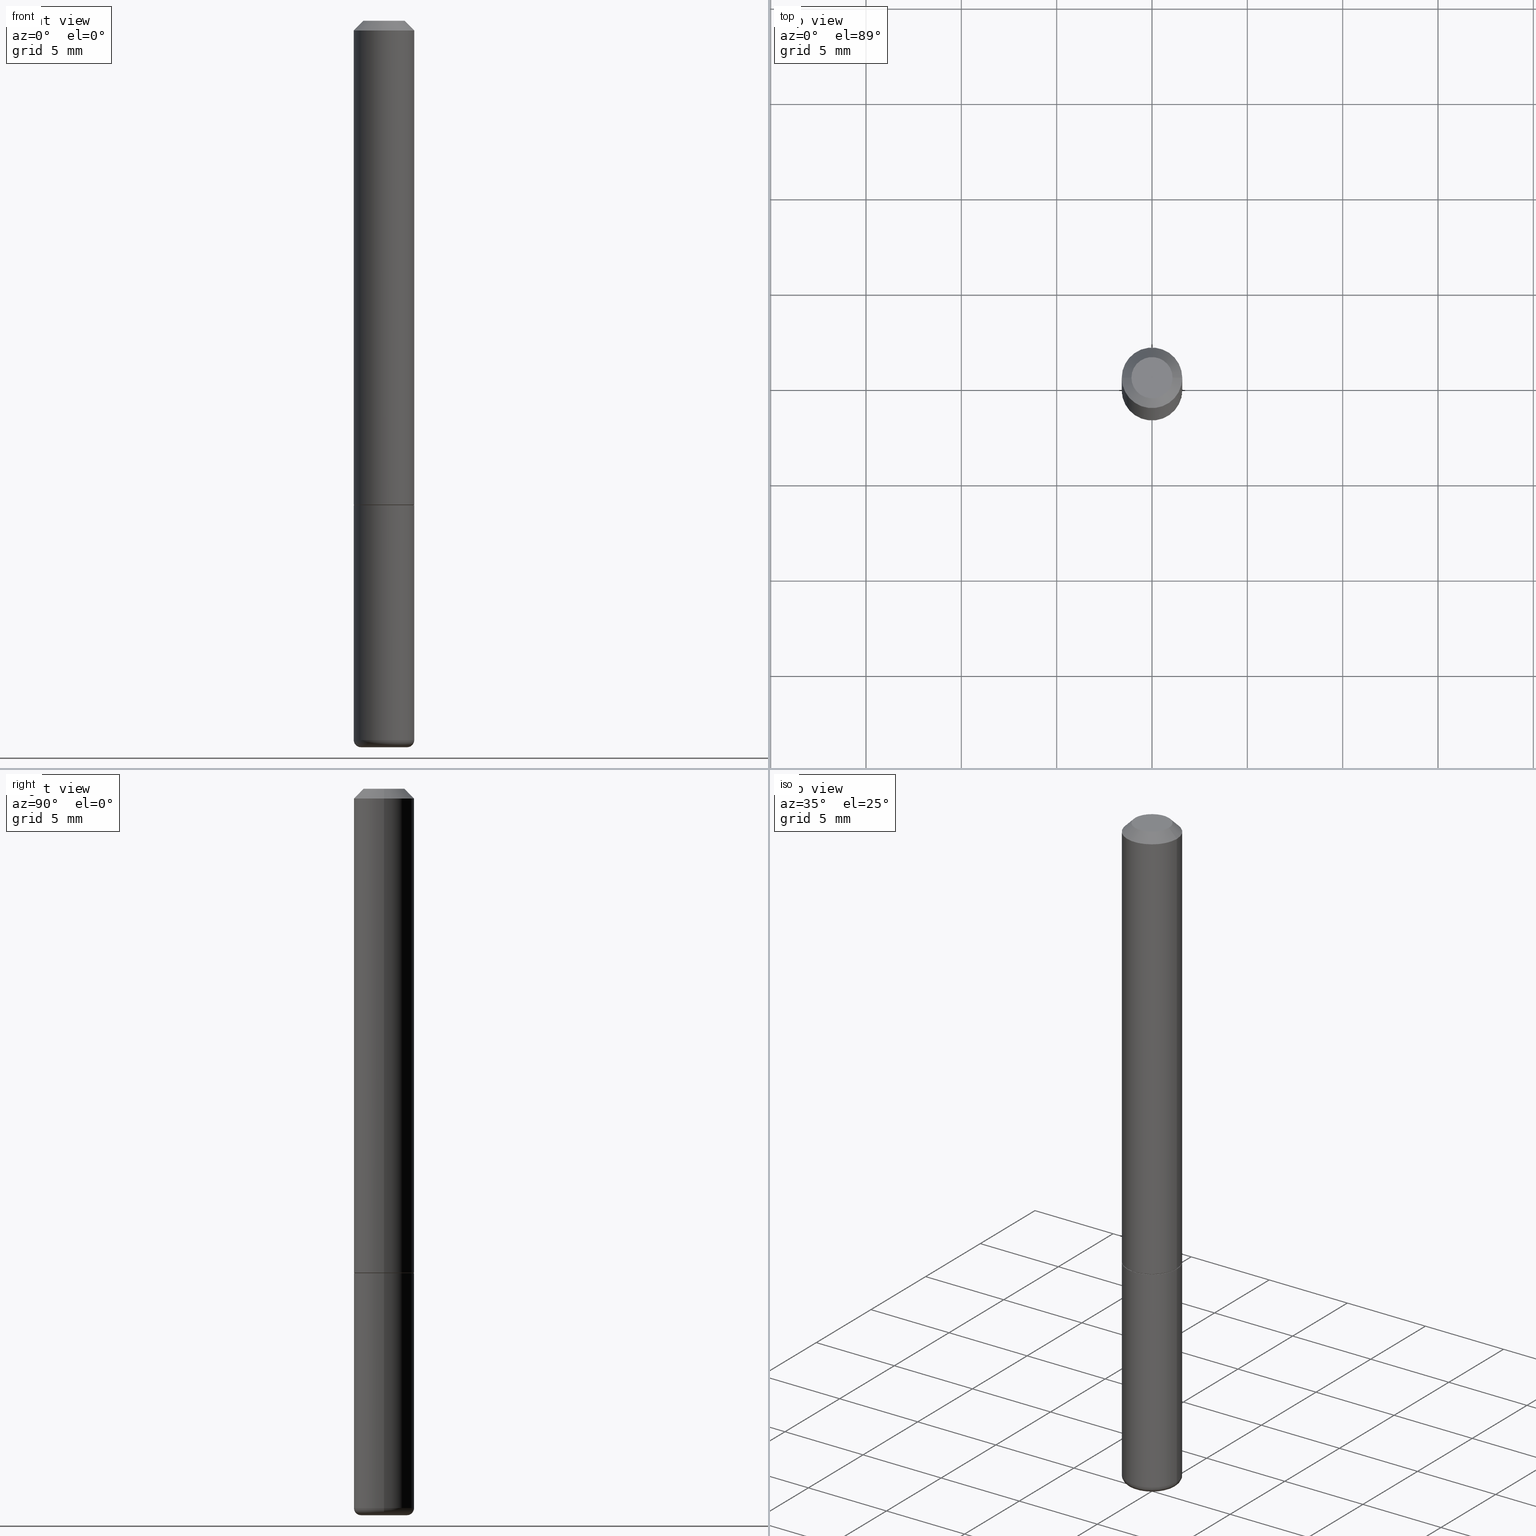
[diagram: canonical four-view strip — front | top / right | iso, engineering-drawing reading convention]
A machine part, canonical four-view strip (front | top / right | iso — engineering-drawing reading convention). The complete STEP part file that produces these views, byte-faithful:
ISO-10303-21;
HEADER;
FILE_DESCRIPTION (( 'STEP AP203' ),
    '1' );
FILE_NAME ('38157.STEP',
    '2023-03-22T20:25:53',
    ( '' ),
    ( '' ),
    'SwSTEP 2.0',
    'SolidWorks 2022',
    '' );
FILE_SCHEMA (( 'CONFIG_CONTROL_DESIGN' ));
ENDSEC;

DATA;
#1 = FACE_OUTER_BOUND ( 'NONE', #114, .T. ) ;
#2 = AXIS2_PLACEMENT_3D ( 'NONE', #435, #329, #359 ) ;
#3 = ORIENTED_EDGE ( 'NONE', *, *, #268, .F. ) ;
#4 = CARTESIAN_POINT ( 'NONE',  ( 0.000000000000000000, 0.000000000000000000, 0.000000000000000000 ) ) ;
#5 = ORIENTED_EDGE ( 'NONE', *, *, #74, .F. ) ;
#6 = CARTESIAN_POINT ( 'NONE',  ( -0.06249999999999988204, 4.440892098500617780E-16, -3.074334431409310158E-30 ) ) ;
#7 = EDGE_LOOP ( 'NONE', ( #322, #236, #81, #41 ) ) ;
#8 = DATE_AND_TIME ( #215, #214 ) ;
#9 = ADVANCED_FACE ( 'NONE', ( #179 ), #182, .T. ) ;
#10 = CIRCLE ( 'NONE', #152, 0.06249999999999981265 ) ;
#11 = COORDINATED_UNIVERSAL_TIME_OFFSET ( 5, 0, .BEHIND. ) ;
#12 = EDGE_CURVE ( 'NONE', #313, #301, #80, .T. ) ;
#13 = DIRECTION ( 'NONE',  ( 1.000000000000000000, -6.982962677686268288E-15, 0.000000000000000000 ) ) ;
#14 = LENGTH_MEASURE_WITH_UNIT ( LENGTH_MEASURE( 0.02539999999999999897 ), #29 );
#15 = DIRECTION ( 'NONE',  ( 1.000000000000000000, -6.982962677686259611E-15, 0.000000000000000000 ) ) ;
#16 = VECTOR ( 'NONE', #86, 39.37007874015748143 ) ;
#17 = CONICAL_SURFACE ( 'NONE', #109, 751.2258538476739886, 1.518436449235074148 ) ;
#18 = DATE_TIME_ROLE ( 'creation_date' ) ;
#19 = VECTOR ( 'NONE', #287, 39.37007874015748143 ) ;
#20 = DIRECTION ( 'NONE',  ( -2.445468806185136597E-29, 3.491481338843145583E-15, 1.000000000000000000 ) ) ;
#21 = DIRECTION ( 'NONE',  ( -2.445468806185136597E-29, 3.491481338843145583E-15, 1.000000000000000000 ) ) ;
#22 = CC_DESIGN_PERSON_AND_ORGANIZATION_ASSIGNMENT ( #320, #77, ( #188 ) ) ;
#23 = EDGE_CURVE ( 'NONE', #211, #413, #202, .T. ) ;
#24 = CC_DESIGN_SECURITY_CLASSIFICATION ( #188, ( #432 ) ) ;
#25 = CARTESIAN_POINT ( 'NONE',  ( -0.04750000000000004219, -4.847413763003477187E-15, -1.485020556978682960 ) ) ;
#26 = CARTESIAN_POINT ( 'NONE',  ( -0.06150000000000001299, -3.054497556350684763E-15, -1.000000000000000222 ) ) ;
#27 = CC_DESIGN_PERSON_AND_ORGANIZATION_ASSIGNMENT ( #47, #113, ( #432 ) ) ;
#28 = CARTESIAN_POINT ( 'NONE',  ( 0.06249999999999988204, -4.364351673553908312E-16, 3.047610484872453915E-30 ) ) ;
#29 =( LENGTH_UNIT ( ) NAMED_UNIT ( * ) SI_UNIT ( $, .METRE. ) );
#30 = VECTOR ( 'NONE', #295, 39.37007874015748143 ) ;
#31 = ORGANIZATION ( 'UNSPECIFIED', 'UNSPECIFIED', '' ) ;
#32 = FACE_OUTER_BOUND ( 'NONE', #136, .T. ) ;
#33 = ORIENTED_EDGE ( 'NONE', *, *, #124, .T. ) ;
#34 = CARTESIAN_POINT ( 'NONE',  ( 2.445468806185137438E-29, -3.491481338843146371E-15, -1.000000000000000222 ) ) ;
#35 = ORIENTED_EDGE ( 'NONE', *, *, #327, .F. ) ;
#36 = DIRECTION ( 'NONE',  ( 1.000000000000000000, -6.982962677686268288E-15, 0.000000000000000000 ) ) ;
#37 = CIRCLE ( 'NONE', #422, 0.06250000000000001388 ) ;
#38 = ORIENTED_EDGE ( 'NONE', *, *, #386, .T. ) ;
#39 = CARTESIAN_POINT ( 'NONE',  ( 2.445468806185137438E-29, -3.491481338843146371E-15, -1.000000000000000222 ) ) ;
#40 = DESIGN_CONTEXT ( 'detailed design', #46, 'design' ) ;
#41 = ORIENTED_EDGE ( 'NONE', *, *, #243, .F. ) ;
#42 = APPROVAL ( #241, 'UNSPECIFIED' ) ;
#43 = CALENDAR_DATE ( 2023, 22, 3 ) ;
#44 = EDGE_CURVE ( 'NONE', #378, #266, #64, .T. ) ;
#45 = LINE ( 'NONE', #180, #19 ) ;
#46 = APPLICATION_CONTEXT ( 'configuration controlled 3d designs of mechanical parts and assemblies' ) ;
#47 = PERSON_AND_ORGANIZATION ( #280, #31 ) ;
#48 = AXIS2_PLACEMENT_3D ( 'NONE', #369, #71, #104 ) ;
#49 = PERSON_AND_ORGANIZATION_ROLE ( 'design_supplier' ) ;
#50 = DIRECTION ( 'NONE',  ( 1.000000000000000000, -6.982962677686267499E-15, 4.870577812114089772E-29 ) ) ;
#51 = EDGE_LOOP ( 'NONE', ( #394, #342 ) ) ;
#52 = PERSON_AND_ORGANIZATION ( #280, #31 ) ;
#53 = DIRECTION ( 'NONE',  ( -2.445468806185136597E-29, 3.491481338843145583E-15, 1.000000000000000000 ) ) ;
#54 = TOROIDAL_SURFACE ( 'NONE', #401, 0.04750000000000004219, 0.01499999999999971148 ) ;
#55 = DIRECTION ( 'NONE',  ( 1.000000000000000000, -6.982962677686265922E-15, 4.876176775795935793E-29 ) ) ;
#56 = EDGE_CURVE ( 'NONE', #348, #170, #290, .T. ) ;
#57 = LINE ( 'NONE', #6, #162 ) ;
#58 = PRODUCT_DEFINITION ( 'UNKNOWN', '', #432, #40 ) ;
#59 = DIRECTION ( 'NONE',  ( -1.000000000000000000, 7.105427357600997914E-15, 0.000000000000000000 ) ) ;
#60 = AXIS2_PLACEMENT_3D ( 'NONE', #99, #311, #132 ) ;
#61 = DIRECTION ( 'NONE',  ( 1.000000000000000000, -6.982962677686259611E-15, 4.883557194083110659E-29 ) ) ;
#62 = CARTESIAN_POINT ( 'NONE',  ( 0.06249999999999988204, -4.364351673553908312E-16, 3.047610484872453915E-30 ) ) ;
#63 = DIRECTION ( 'NONE',  ( 1.000000000000000000, -6.982962677686266711E-15, 4.876176775795935232E-29 ) ) ;
#64 = CIRCLE ( 'NONE', #437, 0.06249999999999995143 ) ;
#65 = CIRCLE ( 'NONE', #325, 0.06150000000000001299 ) ;
#66 = ORIENTED_EDGE ( 'NONE', *, *, #340, .F. ) ;
#67 = ADVANCED_BREP_SHAPE_REPRESENTATION ( '38157', ( #131, #428, #299 ), #307 ) ;
#68 = CYLINDRICAL_SURFACE ( 'NONE', #221, 0.06249999999999988204 ) ;
#69 = ORIENTED_EDGE ( 'NONE', *, *, #210, .T. ) ;
#70 = CARTESIAN_POINT ( 'NONE',  ( 0.000000000000000000, 0.000000000000000000, 0.000000000000000000 ) ) ;
#71 = DIRECTION ( 'NONE',  ( 2.438088387897960049E-29, -3.491481338843145188E-15, -1.000000000000000000 ) ) ;
#72 = AXIS2_PLACEMENT_3D ( 'NONE', #262, #260, #61 ) ;
#73 = ORIENTED_EDGE ( 'NONE', *, *, #56, .T. ) ;
#74 = EDGE_CURVE ( 'NONE', #166, #253, #37, .T. ) ;
#75 = APPROVAL_ROLE ( '' ) ;
#76 = ORIENTED_EDGE ( 'NONE', *, *, #149, .F. ) ;
#77 = PERSON_AND_ORGANIZATION_ROLE ( 'classification_officer' ) ;
#78 = ORIENTED_EDGE ( 'NONE', *, *, #150, .T. ) ;
#79 = PERSON_AND_ORGANIZATION ( #280, #31 ) ;
#80 = LINE ( 'NONE', #387, #204 ) ;
#81 = ORIENTED_EDGE ( 'NONE', *, *, #23, .F. ) ;
#82 = COORDINATED_UNIVERSAL_TIME_OFFSET ( 5, 0, .BEHIND. ) ;
#83 = DIRECTION ( 'NONE',  ( -2.445468806185136597E-29, 3.491481338843145583E-15, 1.000000000000000000 ) ) ;
#84 = VERTEX_POINT ( 'NONE', #427 ) ;
#85 = APPROVAL_STATUS ( 'not_yet_approved' ) ;
#86 = DIRECTION ( 'NONE',  ( -2.445468806185136877E-29, 3.491481338843145188E-15, 1.000000000000000000 ) ) ;
#87 = EDGE_CURVE ( 'NONE', #313, #350, #240, .T. ) ;
#88 = AXIS2_PLACEMENT_3D ( 'NONE', #197, #275, #343 ) ;
#89 = FACE_OUTER_BOUND ( 'NONE', #7, .T. ) ;
#90 = LINE ( 'NONE', #62, #30 ) ;
#91 = DIRECTION ( 'NONE',  ( -1.000000000000000000, 6.982962677686266711E-15, 0.000000000000000000 ) ) ;
#92 = AXIS2_PLACEMENT_3D ( 'NONE', #355, #53, #119 ) ;
#93 = AXIS2_PLACEMENT_3D ( 'NONE', #189, #333, #121 ) ;
#94 = CARTESIAN_POINT ( 'NONE',  ( 2.445468806185137438E-29, -3.491481338843146371E-15, -1.000000000000000222 ) ) ;
#95 = CYLINDRICAL_SURFACE ( 'NONE', #93, 0.06249999999999988204 ) ;
#96 = FACE_OUTER_BOUND ( 'NONE', #356, .T. ) ;
#97 = EDGE_LOOP ( 'NONE', ( #276, #73, #106 ) ) ;
#98 = CC_DESIGN_PERSON_AND_ORGANIZATION_ASSIGNMENT ( #52, #389, ( #58 ) ) ;
#99 = CARTESIAN_POINT ( 'NONE',  ( 4.364351673554161734E-16, 0.06249999999999652361, -1.000000000000000444 ) ) ;
#100 = AXIS2_PLACEMENT_3D ( 'NONE', #203, #416, #308 ) ;
#101 = ORIENTED_EDGE ( 'NONE', *, *, #424, .F. ) ;
#102 = DIRECTION ( 'NONE',  ( -2.445468806185136597E-29, 3.491481338843145583E-15, 1.000000000000000000 ) ) ;
#103 = ORIENTED_EDGE ( 'NONE', *, *, #283, .F. ) ;
#104 = DIRECTION ( 'NONE',  ( -1.000000000000000000, 6.982962677686265922E-15, -4.876176775795935793E-29 ) ) ;
#105 = EDGE_CURVE ( 'NONE', #350, #248, #45, .T. ) ;
#106 = ORIENTED_EDGE ( 'NONE', *, *, #124, .F. ) ;
#107 = DATE_AND_TIME ( #323, #177 ) ;
#108 = AXIS2_PLACEMENT_3D ( 'NONE', #219, #112, #224 ) ;
#109 = AXIS2_PLACEMENT_3D ( 'NONE', #142, #195, #339 ) ;
#110 = ORIENTED_EDGE ( 'NONE', *, *, #12, .T. ) ;
#111 = DATE_TIME_ROLE ( 'classification_date' ) ;
#112 = DIRECTION ( 'NONE',  ( -2.445468806185136597E-29, 3.491481338843145583E-15, 1.000000000000000000 ) ) ;
#113 = PERSON_AND_ORGANIZATION_ROLE ( 'creator' ) ;
#114 = EDGE_LOOP ( 'NONE', ( #168, #138, #66 ) ) ;
#115 = DIRECTION ( 'NONE',  ( -2.445468806185136597E-29, 3.491481338843145583E-15, 1.000000000000000000 ) ) ;
#116 = CIRCLE ( 'NONE', #100, 0.06249999999999981265 ) ;
#117 =( NAMED_UNIT ( * ) SI_UNIT ( $, .STERADIAN. ) SOLID_ANGLE_UNIT ( ) );
#118 = FACE_OUTER_BOUND ( 'NONE', #303, .T. ) ;
#119 = DIRECTION ( 'NONE',  ( 1.000000000000000000, -6.982962677686258033E-15, 0.000000000000000000 ) ) ;
#120 = ADVANCED_FACE ( 'NONE', ( #118 ), #54, .T. ) ;
#121 = DIRECTION ( 'NONE',  ( 1.000000000000000000, -6.982962677686266711E-15, 4.876176775795935232E-29 ) ) ;
#122 = CONICAL_SURFACE ( 'NONE', #309, 0.06249999999999981265, 0.7853981633974463916 ) ;
#123 = APPROVAL_PERSON_ORGANIZATION ( #148, #392, #284 ) ;
#124 = EDGE_CURVE ( 'NONE', #84, #170, #395, .T. ) ;
#125 = CARTESIAN_POINT ( 'NONE',  ( 0.06249999999999981265, -4.986107516375823445E-16, -0.01999999999999999001 ) ) ;
#126 = CARTESIAN_POINT ( 'NONE',  ( 9.994051560177719446E-28, -1.426885692982134992E-13, -40.86763051281019443 ) ) ;
#127 = CARTESIAN_POINT ( 'NONE',  ( -2.032607766320327213E-17, -5.228674068168398963E-15, -1.497551772652707003 ) ) ;
#128 = LOCAL_TIME ( 16, 25, 53.00000000000000000, #206 ) ;
#129 = FACE_OUTER_BOUND ( 'NONE', #353, .T. ) ;
#130 = AXIS2_PLACEMENT_3D ( 'NONE', #126, #404, #91 ) ;
#131 = MANIFOLD_SOLID_BREP ( 'Body-Move/Copy2[1]', #379 ) ;
#132 = DIRECTION ( 'NONE',  ( -1.000000000000000000, 6.982962677686265922E-15, -4.876176775795935793E-29 ) ) ;
#133 = EDGE_CURVE ( 'NONE', #413, #253, #145, .T. ) ;
#134 = ORIENTED_EDGE ( 'NONE', *, *, #268, .T. ) ;
#135 = CARTESIAN_POINT ( 'NONE',  ( 0.06249999999999995143, -3.924425024859695428E-15, -0.9990000000000004432 ) ) ;
#136 = EDGE_LOOP ( 'NONE', ( #310, #140, #110, #319 ) ) ;
#137 = DIRECTION ( 'NONE',  ( -2.445468806185136877E-29, 3.491481338843145188E-15, 1.000000000000000000 ) ) ;
#138 = ORIENTED_EDGE ( 'NONE', *, *, #230, .T. ) ;
#139 = DIRECTION ( 'NONE',  ( 1.000000000000000000, -6.982962677686266711E-15, 0.000000000000000000 ) ) ;
#140 = ORIENTED_EDGE ( 'NONE', *, *, #87, .F. ) ;
#141 = DIMENSIONAL_EXPONENTS ( 1.000000000000000000, 0.000000000000000000, 0.000000000000000000, 0.000000000000000000, 0.000000000000000000, 0.000000000000000000, 0.000000000000000000 ) ;
#142 = CARTESIAN_POINT ( 'NONE',  ( 9.994051560177719446E-28, -1.426885692982134992E-13, -40.86763051281019443 ) ) ;
#143 = ORIENTED_EDGE ( 'NONE', *, *, #368, .T. ) ;
#144 = MECHANICAL_CONTEXT ( 'NONE', #328, 'mechanical' ) ;
#145 = LINE ( 'NONE', #393, #16 ) ;
#146 = CIRCLE ( 'NONE', #193, 0.01499999999999971148 ) ;
#147 = CIRCLE ( 'NONE', #257, 0.04671496065635604572 ) ;
#148 = PERSON_AND_ORGANIZATION ( #280, #31 ) ;
#149 = EDGE_CURVE ( 'NONE', #413, #211, #263, .T. ) ;
#150 = EDGE_CURVE ( 'NONE', #350, #313, #316, .T. ) ;
#151 = CALENDAR_DATE ( 2023, 22, 3 ) ;
#152 = AXIS2_PLACEMENT_3D ( 'NONE', #239, #306, #139 ) ;
#153 = CALENDAR_DATE ( 2023, 22, 3 ) ;
#154 = CARTESIAN_POINT ( 'NONE',  ( 2.445468806185137438E-29, -3.491481338843146371E-15, -1.000000000000000222 ) ) ;
#155 = CC_DESIGN_DATE_AND_TIME_ASSIGNMENT ( #107, #18, ( #58 ) ) ;
#156 = DIRECTION ( 'NONE',  ( -1.000000000000000000, 6.982962677686266711E-15, 0.000000000000000000 ) ) ;
#157 = AXIS2_PLACEMENT_3D ( 'NONE', #4, #335, #63 ) ;
#158 = DIRECTION ( 'NONE',  ( 1.000000000000000000, -6.982962677686273021E-15, 0.000000000000000000 ) ) ;
#159 = CARTESIAN_POINT ( 'NONE',  ( 0.06150000000000001299, -3.920933543520852421E-15, -1.000000000000000222 ) ) ;
#160 = DIRECTION ( 'NONE',  ( -0.7071067811865957564, 7.493145998870527710E-15, 0.7071067811864992780 ) ) ;
#161 = CLOSED_SHELL ( 'NONE', ( #293, #439, #244, #341, #372, #9, #292, #406 ) ) ;
#162 = VECTOR ( 'NONE', #137, 39.37007874015748143 ) ;
#163 = DIRECTION ( 'NONE',  ( -1.000000000000000000, 6.982962677686266711E-15, 0.000000000000000000 ) ) ;
#164 = ADVANCED_FACE ( 'NONE', ( #229 ), #184, .F. ) ;
#165 = AXIS2_PLACEMENT_3D ( 'NONE', #213, #83, #15 ) ;
#166 = VERTEX_POINT ( 'NONE', #362 ) ;
#167 = DIRECTION ( 'NONE',  ( -2.445468806185136597E-29, 3.491481338843145583E-15, 1.000000000000000000 ) ) ;
#168 = ORIENTED_EDGE ( 'NONE', *, *, #56, .F. ) ;
#169 = PLANE ( 'NONE',  #48 ) ;
#170 = VERTEX_POINT ( 'NONE', #396 ) ;
#171 = CARTESIAN_POINT ( 'NONE',  ( -0.06249999999999975020, -3.894112240816274685E-15, -1.485020556978682515 ) ) ;
#172 = ORIENTED_EDGE ( 'NONE', *, *, #405, .T. ) ;
#173 = DIRECTION ( 'NONE',  ( 1.000000000000000000, -6.982962677686266711E-15, 4.876176775795935232E-29 ) ) ;
#174 = ORIENTED_EDGE ( 'NONE', *, *, #312, .F. ) ;
#175 = APPLICATION_PROTOCOL_DEFINITION ( 'international standard', 'config_control_design', 1994, #46 ) ;
#176 = DIRECTION ( 'NONE',  ( -0.7071067811865461294, 2.468850131082242072E-15, -0.7071067811865489050 ) ) ;
#177 = LOCAL_TIME ( 16, 25, 53.00000000000000000, #314 ) ;
#178 = CC_DESIGN_PERSON_AND_ORGANIZATION_ASSIGNMENT ( #278, #209, ( #354 ) ) ;
#179 = FACE_OUTER_BOUND ( 'NONE', #238, .T. ) ;
#180 = CARTESIAN_POINT ( 'NONE',  ( 0.06249999999999981265, -4.986107516375823445E-16, -0.01999999999999999001 ) ) ;
#181 = ORIENTED_EDGE ( 'NONE', *, *, #44, .F. ) ;
#182 = CONICAL_SURFACE ( 'NONE', #403, 0.06150000000000001299, 0.7853981633975165577 ) ;
#183 = VECTOR ( 'NONE', #400, 39.37007874015748143 ) ;
#184 = CONICAL_SURFACE ( 'NONE', #130, 751.2258538476739886, 1.518436449235074148 ) ;
#185 = FACE_OUTER_BOUND ( 'NONE', #51, .T. ) ;
#186 = LINE ( 'NONE', #26, #338 ) ;
#187 = CARTESIAN_POINT ( 'NONE',  ( 0.04750000000000004219, -5.516612289679623769E-15, -1.485020556978682960 ) ) ;
#188 = SECURITY_CLASSIFICATION ( '', '', #421 ) ;
#189 = CARTESIAN_POINT ( 'NONE',  ( 0.000000000000000000, 0.000000000000000000, 0.000000000000000000 ) ) ;
#190 = CARTESIAN_POINT ( 'NONE',  ( 0.06249999999999975020, -5.621356729844913983E-15, -1.485020556978682515 ) ) ;
#191 = EDGE_CURVE ( 'NONE', #211, #166, #363, .T. ) ;
#192 = ORIENTED_EDGE ( 'NONE', *, *, #243, .T. ) ;
#193 = AXIS2_PLACEMENT_3D ( 'NONE', #187, #433, #158 ) ;
#194 = CONICAL_SURFACE ( 'NONE', #397, 0.06249999999999981265, 0.7853981633974463916 ) ;
#195 = DIRECTION ( 'NONE',  ( 2.445468806185136597E-29, -3.491481338843145583E-15, -1.000000000000000000 ) ) ;
#196 = ORIENTED_EDGE ( 'NONE', *, *, #44, .T. ) ;
#197 = CARTESIAN_POINT ( 'NONE',  ( 2.445468806185137438E-29, -3.491481338843146371E-15, -1.000000000000000222 ) ) ;
#198 = ORIENTED_EDGE ( 'NONE', *, *, #312, .T. ) ;
#199 = ORIENTED_EDGE ( 'NONE', *, *, #149, .T. ) ;
#200 = DIRECTION ( 'NONE',  ( -2.445468806185136597E-29, 3.491481338843145583E-15, 1.000000000000000000 ) ) ;
#201 = VERTEX_POINT ( 'NONE', #364 ) ;
#202 = CIRCLE ( 'NONE', #165, 0.06249999999999975020 ) ;
#203 = CARTESIAN_POINT ( 'NONE',  ( 4.890937612370270531E-31, -6.982962677686289144E-17, -0.01999999999999999001 ) ) ;
#204 = VECTOR ( 'NONE', #176, 39.37007874015748143 ) ;
#205 = ORIENTED_EDGE ( 'NONE', *, *, #210, .F. ) ;
#206 = COORDINATED_UNIVERSAL_TIME_OFFSET ( 5, 0, .BEHIND. ) ;
#207 = ORIENTED_EDGE ( 'NONE', *, *, #133, .F. ) ;
#208 = EDGE_CURVE ( 'NONE', #84, #413, #440, .T. ) ;
#209 = PERSON_AND_ORGANIZATION_ROLE ( 'design_owner' ) ;
#210 = EDGE_CURVE ( 'NONE', #378, #248, #90, .T. ) ;
#211 = VERTEX_POINT ( 'NONE', #190 ) ;
#212 = APPLICATION_PROTOCOL_DEFINITION ( 'international standard', 'config_control_design', 1994, #328 ) ;
#213 = CARTESIAN_POINT ( 'NONE',  ( 3.631571448635045368E-29, -5.184921562489524681E-15, -1.485020556978682515 ) ) ;
#214 = LOCAL_TIME ( 16, 25, 53.00000000000000000, #82 ) ;
#215 = CALENDAR_DATE ( 2023, 22, 3 ) ;
#216 = ORIENTED_EDGE ( 'NONE', *, *, #191, .F. ) ;
#217 = PERSON_AND_ORGANIZATION ( #280, #31 ) ;
#218 = DIRECTION ( 'NONE',  ( 1.000000000000000000, -6.982962677686259611E-15, 4.883557194083110659E-29 ) ) ;
#219 = CARTESIAN_POINT ( 'NONE',  ( 3.631571448635045368E-29, -5.184921562489524681E-15, -1.485020556978682515 ) ) ;
#220 = AXIS2_PLACEMENT_3D ( 'NONE', #25, #296, #59 ) ;
#221 = AXIS2_PLACEMENT_3D ( 'NONE', #442, #273, #173 ) ;
#222 = CARTESIAN_POINT ( 'NONE',  ( -0.06249999999999981265, 3.666055405785274344E-16, -0.01999999999999999001 ) ) ;
#223 = SHAPE_DEFINITION_REPRESENTATION ( #429, #67 ) ;
#224 = DIRECTION ( 'NONE',  ( 1.000000000000000000, -6.982962677686259611E-15, 0.000000000000000000 ) ) ;
#225 = CARTESIAN_POINT ( 'NONE',  ( -0.06250000000000001388, -3.894112240816274685E-15, -1.000000000000000222 ) ) ;
#226 = AXIS2_PLACEMENT_3D ( 'NONE', #324, #321, #50 ) ;
#227 = APPROVAL_PERSON_ORGANIZATION ( #250, #259, #425 ) ;
#228 = EDGE_LOOP ( 'NONE', ( #196, #198, #101, #205 ) ) ;
#229 = FACE_OUTER_BOUND ( 'NONE', #97, .T. ) ;
#230 = EDGE_CURVE ( 'NONE', #348, #84, #399, .T. ) ;
#231 = FACE_OUTER_BOUND ( 'NONE', #228, .T. ) ;
#232 = FACE_OUTER_BOUND ( 'NONE', #346, .T. ) ;
#233 = ORIENTED_EDGE ( 'NONE', *, *, #105, .T. ) ;
#234 = AXIS2_PLACEMENT_3D ( 'NONE', #39, #102, #375 ) ;
#235 = DIRECTION ( 'NONE',  ( 1.000000000000000000, -6.982962677686258033E-15, 0.000000000000000000 ) ) ;
#236 = ORIENTED_EDGE ( 'NONE', *, *, #208, .T. ) ;
#237 = CARTESIAN_POINT ( 'NONE',  ( -0.04249999999999995448, 3.316907271900966728E-16, -5.549066237130754373E-17 ) ) ;
#238 = EDGE_LOOP ( 'NONE', ( #3, #143, #272, #408 ) ) ;
#239 = CARTESIAN_POINT ( 'NONE',  ( 4.890937612370270531E-31, -6.982962677686289144E-17, -0.01999999999999999001 ) ) ;
#240 = CIRCLE ( 'NONE', #226, 0.04249999999999995448 ) ;
#241 = APPROVAL_STATUS ( 'not_yet_approved' ) ;
#242 = ORIENTED_EDGE ( 'NONE', *, *, #424, .T. ) ;
#243 = EDGE_CURVE ( 'NONE', #170, #211, #146, .T. ) ;
#244 = ADVANCED_FACE ( 'NONE', ( #332 ), #122, .T. ) ;
#245 = DATE_AND_TIME ( #43, #128 ) ;
#246 = ORIENTED_EDGE ( 'NONE', *, *, #23, .T. ) ;
#247 = DIRECTION ( 'NONE',  ( 1.000000000000000000, 0.000000000000000000, 0.000000000000000000 ) ) ;
#248 = VERTEX_POINT ( 'NONE', #125 ) ;
#249 = ADVANCED_FACE ( 'NONE', ( #89 ), #256, .T. ) ;
#250 = PERSON_AND_ORGANIZATION ( #280, #31 ) ;
#251 = CARTESIAN_POINT ( 'NONE',  ( 2.445468806185137438E-29, -3.491481338843146371E-15, -1.000000000000000222 ) ) ;
#252 = CONICAL_SURFACE ( 'NONE', #270, 0.06150000000000001299, 0.7853981633975165577 ) ;
#253 = VERTEX_POINT ( 'NONE', #225 ) ;
#254 = CARTESIAN_POINT ( 'NONE',  ( 3.631571448635045929E-29, -5.184921562489525469E-15, -1.485020556978682960 ) ) ;
#255 = DIRECTION ( 'NONE',  ( 1.000000000000000000, -6.982962677686268288E-15, 0.000000000000000000 ) ) ;
#256 = TOROIDAL_SURFACE ( 'NONE', #72, 0.04750000000000004219, 0.01499999999999971148 ) ;
#257 = AXIS2_PLACEMENT_3D ( 'NONE', #412, #271, #235 ) ;
#258 = ADVANCED_FACE ( 'NONE', ( #291 ), #95, .T. ) ;
#259 = APPROVAL ( #281, 'UNSPECIFIED' ) ;
#260 = DIRECTION ( 'NONE',  ( -2.445468806185136597E-29, 3.491481338843145583E-15, 1.000000000000000000 ) ) ;
#261 = DIRECTION ( 'NONE',  ( 2.445468806185136597E-29, -3.491481338843145583E-15, -1.000000000000000000 ) ) ;
#262 = CARTESIAN_POINT ( 'NONE',  ( 3.631571448635045929E-29, -5.184921562489525469E-15, -1.485020556978682960 ) ) ;
#263 = CIRCLE ( 'NONE', #108, 0.06249999999999975020 ) ;
#264 = APPROVAL_PERSON_ORGANIZATION ( #217, #42, #75 ) ;
#265 = CARTESIAN_POINT ( 'NONE',  ( 2.445468806185137438E-29, -3.491481338843146371E-15, -1.000000000000000222 ) ) ;
#266 = VERTEX_POINT ( 'NONE', #334 ) ;
#267 = CARTESIAN_POINT ( 'NONE',  ( 3.676409769840065992E-29, -5.208347990505159588E-15, -1.497551772652707003 ) ) ;
#268 = EDGE_CURVE ( 'NONE', #201, #266, #186, .T. ) ;
#269 = ORIENTED_EDGE ( 'NONE', *, *, #133, .T. ) ;
#270 = AXIS2_PLACEMENT_3D ( 'NONE', #265, #20, #255 ) ;
#271 = DIRECTION ( 'NONE',  ( -2.445468806185136597E-29, 3.491481338843145583E-15, 1.000000000000000000 ) ) ;
#272 = ORIENTED_EDGE ( 'NONE', *, *, #283, .T. ) ;
#273 = DIRECTION ( 'NONE',  ( -2.445468806185136597E-29, 3.491481338843145583E-15, 1.000000000000000000 ) ) ;
#274 = ORIENTED_EDGE ( 'NONE', *, *, #87, .T. ) ;
#275 = DIRECTION ( 'NONE',  ( -2.445468806185136597E-29, 3.491481338843145583E-15, 1.000000000000000000 ) ) ;
#276 = ORIENTED_EDGE ( 'NONE', *, *, #230, .F. ) ;
#277 = EDGE_CURVE ( 'NONE', #266, #378, #279, .T. ) ;
#278 = PERSON_AND_ORGANIZATION ( #280, #31 ) ;
#279 = CIRCLE ( 'NONE', #2, 0.06249999999999995143 ) ;
#280 = PERSON ( 'UNSPECIFIED', 'UNSPECIFIED', 'UNSPECIFIED', ('UNSPECIFIED'), ('UNSPECIFIED'), ('UNSPECIFIED') ) ;
#281 = APPROVAL_STATUS ( 'not_yet_approved' ) ;
#282 = CARTESIAN_POINT ( 'NONE',  ( 2.443023337378952675E-29, -3.487989857504303759E-15, -0.9990000000000004432 ) ) ;
#283 = EDGE_CURVE ( 'NONE', #376, #378, #298, .T. ) ;
#284 = APPROVAL_ROLE ( '' ) ;
#285 = DIRECTION ( 'NONE',  ( 1.000000000000000000, -6.982962677686269077E-15, 0.000000000000000000 ) ) ;
#286 = COORDINATED_UNIVERSAL_TIME_OFFSET ( 5, 0, .BEHIND. ) ;
#287 = DIRECTION ( 'NONE',  ( 0.7071067811865461294, -7.319954787623251312E-15, -0.7071067811865489050 ) ) ;
#288 = LOCAL_TIME ( 16, 25, 53.00000000000000000, #286 ) ;
#289 = APPROVAL_DATE_TIME ( #426, #392 ) ;
#290 = LINE ( 'NONE', #315, #361 ) ;
#291 = FACE_OUTER_BOUND ( 'NONE', #441, .T. ) ;
#292 = ADVANCED_FACE ( 'NONE', ( #185 ), #431, .F. ) ;
#293 = ADVANCED_FACE ( 'NONE', ( #129 ), #252, .T. ) ;
#294 = DIRECTION ( 'NONE',  ( 1.000000000000000000, -6.982962677686267499E-15, 4.870577812114089772E-29 ) ) ;
#295 = DIRECTION ( 'NONE',  ( -2.445468806185136877E-29, 3.491481338843145188E-15, 1.000000000000000000 ) ) ;
#296 = DIRECTION ( 'NONE',  ( 7.105427357601001859E-15, 1.000000000000000000, -3.491481338843145583E-15 ) ) ;
#297 = ORIENTED_EDGE ( 'NONE', *, *, #277, .T. ) ;
#298 = LINE ( 'NONE', #159, #183 ) ;
#299 = AXIS2_PLACEMENT_3D ( 'NONE', #385, #349, #247 ) ;
#300 = FACE_OUTER_BOUND ( 'NONE', #370, .T. ) ;
#301 = VERTEX_POINT ( 'NONE', #222 ) ;
#302 = CARTESIAN_POINT ( 'NONE',  ( 0.06150000000000001299, -3.920933543520852421E-15, -1.000000000000000222 ) ) ;
#303 = EDGE_LOOP ( 'NONE', ( #430, #33, #192, #76 ) ) ;
#304 = ORIENTED_EDGE ( 'NONE', *, *, #12, .F. ) ;
#305 = PRODUCT_RELATED_PRODUCT_CATEGORY ( 'detail', '', ( #354 ) ) ;
#306 = DIRECTION ( 'NONE',  ( -2.445468806185136597E-29, 3.491481338843145583E-15, 1.000000000000000000 ) ) ;
#307 =( GEOMETRIC_REPRESENTATION_CONTEXT ( 3 ) GLOBAL_UNCERTAINTY_ASSIGNED_CONTEXT ( ( #417 ) ) GLOBAL_UNIT_ASSIGNED_CONTEXT ( ( #381, #317, #117 ) ) REPRESENTATION_CONTEXT ( 'NONE', 'WORKASPACE' ) );
#308 = DIRECTION ( 'NONE',  ( 1.000000000000000000, -6.982962677686266711E-15, 0.000000000000000000 ) ) ;
#309 = AXIS2_PLACEMENT_3D ( 'NONE', #434, #261, #156 ) ;
#310 = ORIENTED_EDGE ( 'NONE', *, *, #105, .F. ) ;
#311 = DIRECTION ( 'NONE',  ( 2.438088387897960049E-29, -3.491481338843145188E-15, -1.000000000000000000 ) ) ;
#312 = EDGE_CURVE ( 'NONE', #266, #301, #57, .T. ) ;
#313 = VERTEX_POINT ( 'NONE', #237 ) ;
#314 = COORDINATED_UNIVERSAL_TIME_OFFSET ( 5, 0, .BEHIND. ) ;
#315 = CARTESIAN_POINT ( 'NONE',  ( 2.032607766327651910E-17, -5.228674068168398963E-15, -1.497551772652707003 ) ) ;
#316 = CIRCLE ( 'NONE', #419, 0.04249999999999995448 ) ;
#317 =( NAMED_UNIT ( * ) PLANE_ANGLE_UNIT ( ) SI_UNIT ( $, .RADIAN. ) );
#318 = DIRECTION ( 'NONE',  ( -2.445468806185136597E-29, 3.491481338843145583E-15, 1.000000000000000000 ) ) ;
#319 = ORIENTED_EDGE ( 'NONE', *, *, #327, .T. ) ;
#320 = PERSON_AND_ORGANIZATION ( #280, #31 ) ;
#321 = DIRECTION ( 'NONE',  ( -2.445468806185136597E-29, 3.491481338843145583E-15, 1.000000000000000000 ) ) ;
#322 = ORIENTED_EDGE ( 'NONE', *, *, #340, .T. ) ;
#323 = CALENDAR_DATE ( 2023, 22, 3 ) ;
#324 = CARTESIAN_POINT ( 'NONE',  ( 1.357006838635785746E-45, -1.937446121494581442E-31, -5.549066237130534971E-17 ) ) ;
#325 = AXIS2_PLACEMENT_3D ( 'NONE', #34, #167, #36 ) ;
#326 = VECTOR ( 'NONE', #365, 39.37007874015748143 ) ;
#327 = EDGE_CURVE ( 'NONE', #301, #248, #10, .T. ) ;
#328 = APPLICATION_CONTEXT ( 'configuration controlled 3d designs of mechanical parts and assemblies' ) ;
#329 = DIRECTION ( 'NONE',  ( -2.445468806185136597E-29, 3.491481338843145583E-15, 1.000000000000000000 ) ) ;
#330 = CC_DESIGN_PERSON_AND_ORGANIZATION_ASSIGNMENT ( #79, #49, ( #432 ) ) ;
#331 = CARTESIAN_POINT ( 'NONE',  ( 1.357006838635785746E-45, -1.937446121494581442E-31, -5.549066237130534971E-17 ) ) ;
#332 = FACE_OUTER_BOUND ( 'NONE', #374, .T. ) ;
#333 = DIRECTION ( 'NONE',  ( -2.445468806185136597E-29, 3.491481338843145583E-15, 1.000000000000000000 ) ) ;
#334 = CARTESIAN_POINT ( 'NONE',  ( -0.06249999999999995143, -1.334820532290519137E-15, -0.9990000000000004432 ) ) ;
#335 = DIRECTION ( 'NONE',  ( -2.445468806185136597E-29, 3.491481338843145583E-15, 1.000000000000000000 ) ) ;
#336 = VECTOR ( 'NONE', #398, 39.37007874015748143 ) ;
#337 = ORIENTED_EDGE ( 'NONE', *, *, #191, .T. ) ;
#338 = VECTOR ( 'NONE', #160, 39.37007874015748143 ) ;
#339 = DIRECTION ( 'NONE',  ( -1.000000000000000000, 6.982962677686266711E-15, 0.000000000000000000 ) ) ;
#340 = EDGE_CURVE ( 'NONE', #170, #84, #147, .T. ) ;
#341 = ADVANCED_FACE ( 'NONE', ( #32 ), #194, .T. ) ;
#342 = ORIENTED_EDGE ( 'NONE', *, *, #368, .F. ) ;
#343 = DIRECTION ( 'NONE',  ( 1.000000000000000000, -6.982962677686269077E-15, 0.000000000000000000 ) ) ;
#344 = DIRECTION ( 'NONE',  ( 1.000000000000000000, -6.982962677686266711E-15, 4.876176775795935232E-29 ) ) ;
#345 = CARTESIAN_POINT ( 'NONE',  ( 0.04249999999999995448, -3.950909582714361036E-16, -5.549066237130292766E-17 ) ) ;
#346 = EDGE_LOOP ( 'NONE', ( #207, #199, #337, #418 ) ) ;
#347 = DATE_AND_TIME ( #153, #288 ) ;
#348 = VERTEX_POINT ( 'NONE', #267 ) ;
#349 = DIRECTION ( 'NONE',  ( 0.000000000000000000, 0.000000000000000000, 1.000000000000000000 ) ) ;
#350 = VERTEX_POINT ( 'NONE', #345 ) ;
#351 = APPROVAL_DATE_TIME ( #8, #259 ) ;
#352 = DIRECTION ( 'NONE',  ( 0.9986295347545742773, -7.033825938271997912E-15, -0.05233595624293643084 ) ) ;
#353 = EDGE_LOOP ( 'NONE', ( #172, #134, #181, #103 ) ) ;
#354 = PRODUCT ( '38157', '38157', '', ( #144 ) ) ;
#355 = CARTESIAN_POINT ( 'NONE',  ( 3.668203209277707137E-29, -5.237222008264721332E-15, -1.500000000000000888 ) ) ;
#356 = EDGE_LOOP ( 'NONE', ( #174, #297, #69, #35 ) ) ;
#357 = ADVANCED_FACE ( 'NONE', ( #232 ), #68, .T. ) ;
#358 = ADVANCED_FACE ( 'NONE', ( #1 ), #17, .F. ) ;
#359 = DIRECTION ( 'NONE',  ( 1.000000000000000000, -6.982962677686268288E-15, 0.000000000000000000 ) ) ;
#360 = CC_DESIGN_APPROVAL ( #259, ( #432 ) ) ;
#361 = VECTOR ( 'NONE', #352, 39.37007874015748143 ) ;
#362 = CARTESIAN_POINT ( 'NONE',  ( 0.06250000000000001388, -3.927916506198538435E-15, -1.000000000000000222 ) ) ;
#363 = LINE ( 'NONE', #28, #326 ) ;
#364 = CARTESIAN_POINT ( 'NONE',  ( -0.06150000000000001299, -3.049199102002463150E-15, -1.000000000000000222 ) ) ;
#365 = DIRECTION ( 'NONE',  ( -2.445468806185136877E-29, 3.491481338843145188E-15, 1.000000000000000000 ) ) ;
#366 = CYLINDRICAL_SURFACE ( 'NONE', #157, 0.06249999999999988204 ) ;
#367 = CC_DESIGN_DATE_AND_TIME_ASSIGNMENT ( #347, #111, ( #188 ) ) ;
#368 = EDGE_CURVE ( 'NONE', #201, #376, #438, .T. ) ;
#369 = CARTESIAN_POINT ( 'NONE',  ( 2.967759138016660098E-16, 0.04249999999999995448, -1.761332880864862221E-16 ) ) ;
#370 = EDGE_LOOP ( 'NONE', ( #274, #78 ) ) ;
#371 = CC_DESIGN_APPROVAL ( #392, ( #58 ) ) ;
#372 = ADVANCED_FACE ( 'NONE', ( #96 ), #409, .T. ) ;
#373 = DIRECTION ( 'NONE',  ( 2.445468806185136597E-29, -3.491481338843145583E-15, -1.000000000000000000 ) ) ;
#374 = EDGE_LOOP ( 'NONE', ( #415, #233, #242, #304 ) ) ;
#375 = DIRECTION ( 'NONE',  ( 1.000000000000000000, -6.982962677686268288E-15, 0.000000000000000000 ) ) ;
#376 = VERTEX_POINT ( 'NONE', #302 ) ;
#377 = PLANE ( 'NONE',  #60 ) ;
#378 = VERTEX_POINT ( 'NONE', #135 ) ;
#379 = CLOSED_SHELL ( 'NONE', ( #164, #249, #258, #384, #357, #120, #358 ) ) ;
#380 = CC_DESIGN_APPROVAL ( #42, ( #188 ) ) ;
#381 =( CONVERSION_BASED_UNIT ( 'INCH', #14 ) LENGTH_UNIT ( ) NAMED_UNIT ( #141 ) );
#382 = ORIENTED_EDGE ( 'NONE', *, *, #74, .T. ) ;
#383 = APPROVAL_DATE_TIME ( #245, #42 ) ;
#384 = ADVANCED_FACE ( 'NONE', ( #407 ), #377, .F. ) ;
#385 = CARTESIAN_POINT ( 'NONE',  ( 0.000000000000000000, 0.000000000000000000, 0.000000000000000000 ) ) ;
#386 = EDGE_CURVE ( 'NONE', #253, #166, #402, .T. ) ;
#387 = CARTESIAN_POINT ( 'NONE',  ( -0.06249999999999981265, 3.666055405785274344E-16, -0.01999999999999999001 ) ) ;
#388 = AXIS2_PLACEMENT_3D ( 'NONE', #94, #436, #55 ) ;
#389 = PERSON_AND_ORGANIZATION_ROLE ( 'creator' ) ;
#390 = DIRECTION ( 'NONE',  ( 1.000000000000000000, -6.982962677686268288E-15, 0.000000000000000000 ) ) ;
#391 = DIRECTION ( 'NONE',  ( -2.445468806185136597E-29, 3.491481338843145583E-15, 1.000000000000000000 ) ) ;
#392 = APPROVAL ( #85, 'UNSPECIFIED' ) ;
#393 = CARTESIAN_POINT ( 'NONE',  ( -0.06249999999999988204, 4.440892098500617780E-16, -3.074334431409310158E-30 ) ) ;
#394 = ORIENTED_EDGE ( 'NONE', *, *, #405, .F. ) ;
#395 = CIRCLE ( 'NONE', #92, 0.04671496065635604572 ) ;
#396 = CARTESIAN_POINT ( 'NONE',  ( 0.04671496065635604572, -5.563430835017637755E-15, -1.500000000000000888 ) ) ;
#397 = AXIS2_PLACEMENT_3D ( 'NONE', #414, #373, #163 ) ;
#398 = DIRECTION ( 'NONE',  ( -0.9986295347545742773, 6.790662755453668466E-15, -0.05233595624293643084 ) ) ;
#399 = LINE ( 'NONE', #127, #336 ) ;
#400 = DIRECTION ( 'NONE',  ( 0.7071067811865957564, -2.468850131082761932E-15, 0.7071067811864992780 ) ) ;
#401 = AXIS2_PLACEMENT_3D ( 'NONE', #254, #391, #218 ) ;
#402 = CIRCLE ( 'NONE', #88, 0.06250000000000001388 ) ;
#403 = AXIS2_PLACEMENT_3D ( 'NONE', #154, #115, #390 ) ;
#404 = DIRECTION ( 'NONE',  ( 2.445468806185136597E-29, -3.491481338843145583E-15, -1.000000000000000000 ) ) ;
#405 = EDGE_CURVE ( 'NONE', #376, #201, #65, .T. ) ;
#406 = ADVANCED_FACE ( 'NONE', ( #300 ), #169, .F. ) ;
#407 = FACE_OUTER_BOUND ( 'NONE', #411, .T. ) ;
#408 = ORIENTED_EDGE ( 'NONE', *, *, #277, .F. ) ;
#409 = CYLINDRICAL_SURFACE ( 'NONE', #420, 0.06249999999999988204 ) ;
#410 = LOCAL_TIME ( 16, 25, 53.00000000000000000, #11 ) ;
#411 = EDGE_LOOP ( 'NONE', ( #382, #38 ) ) ;
#412 = CARTESIAN_POINT ( 'NONE',  ( 3.668203209277707137E-29, -5.237222008264721332E-15, -1.500000000000000888 ) ) ;
#413 = VERTEX_POINT ( 'NONE', #171 ) ;
#414 = CARTESIAN_POINT ( 'NONE',  ( 4.890937612370270531E-31, -6.982962677686289144E-17, -0.01999999999999999001 ) ) ;
#415 = ORIENTED_EDGE ( 'NONE', *, *, #150, .F. ) ;
#416 = DIRECTION ( 'NONE',  ( -2.445468806185136597E-29, 3.491481338843145583E-15, 1.000000000000000000 ) ) ;
#417 = UNCERTAINTY_MEASURE_WITH_UNIT (LENGTH_MEASURE( 1.000000000000000082E-05 ), #381, 'distance_accuracy_value', 'NONE');
#418 = ORIENTED_EDGE ( 'NONE', *, *, #386, .F. ) ;
#419 = AXIS2_PLACEMENT_3D ( 'NONE', #331, #21, #294 ) ;
#420 = AXIS2_PLACEMENT_3D ( 'NONE', #70, #200, #344 ) ;
#421 = SECURITY_CLASSIFICATION_LEVEL ( 'unclassified' ) ;
#422 = AXIS2_PLACEMENT_3D ( 'NONE', #251, #423, #285 ) ;
#423 = DIRECTION ( 'NONE',  ( -2.445468806185136597E-29, 3.491481338843145583E-15, 1.000000000000000000 ) ) ;
#424 = EDGE_CURVE ( 'NONE', #248, #301, #116, .T. ) ;
#425 = APPROVAL_ROLE ( '' ) ;
#426 = DATE_AND_TIME ( #151, #410 ) ;
#427 = CARTESIAN_POINT ( 'NONE',  ( -0.04671496065635604572, -4.823062300723629506E-15, -1.500000000000000888 ) ) ;
#428 = MANIFOLD_SOLID_BREP ( 'Body-Move/Copy2[2]', #161 ) ;
#429 = PRODUCT_DEFINITION_SHAPE ( 'NONE', 'NONE',  #58 ) ;
#430 = ORIENTED_EDGE ( 'NONE', *, *, #208, .F. ) ;
#431 = PLANE ( 'NONE',  #388 ) ;
#432 = PRODUCT_DEFINITION_FORMATION_WITH_SPECIFIED_SOURCE ( 'ANY', '', #354, .NOT_KNOWN. ) ;
#433 = DIRECTION ( 'NONE',  ( -6.982962677686266711E-15, -1.000000000000000000, 3.491481338843145583E-15 ) ) ;
#434 = CARTESIAN_POINT ( 'NONE',  ( 4.890937612370270531E-31, -6.982962677686289144E-17, -0.01999999999999999001 ) ) ;
#435 = CARTESIAN_POINT ( 'NONE',  ( 2.443023337378952675E-29, -3.487989857504303759E-15, -0.9990000000000004432 ) ) ;
#436 = DIRECTION ( 'NONE',  ( -2.438088387897960049E-29, 3.491481338843145188E-15, 1.000000000000000000 ) ) ;
#437 = AXIS2_PLACEMENT_3D ( 'NONE', #282, #318, #13 ) ;
#438 = CIRCLE ( 'NONE', #234, 0.06150000000000001299 ) ;
#439 = ADVANCED_FACE ( 'NONE', ( #231 ), #366, .T. ) ;
#440 = CIRCLE ( 'NONE', #220, 0.01499999999999971148 ) ;
#441 = EDGE_LOOP ( 'NONE', ( #246, #269, #5, #216 ) ) ;
#442 = CARTESIAN_POINT ( 'NONE',  ( 0.000000000000000000, 0.000000000000000000, 0.000000000000000000 ) ) ;
ENDSEC;
END-ISO-10303-21;
